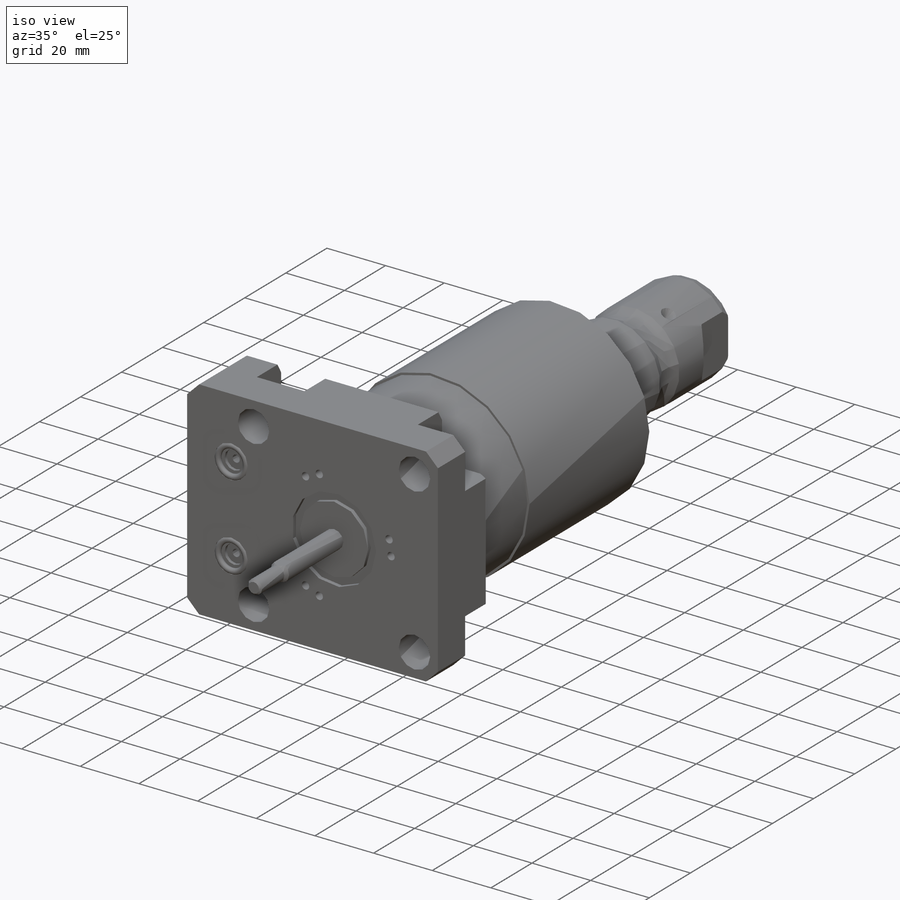
[diagram: iso view]
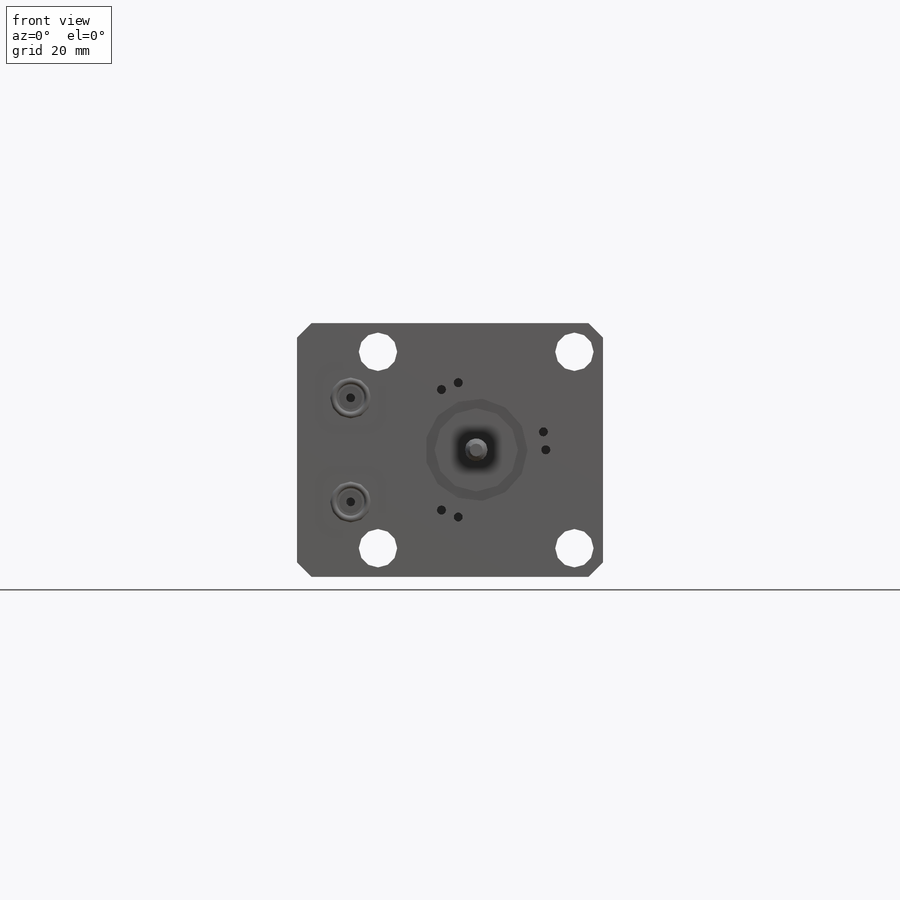
[diagram: front view]
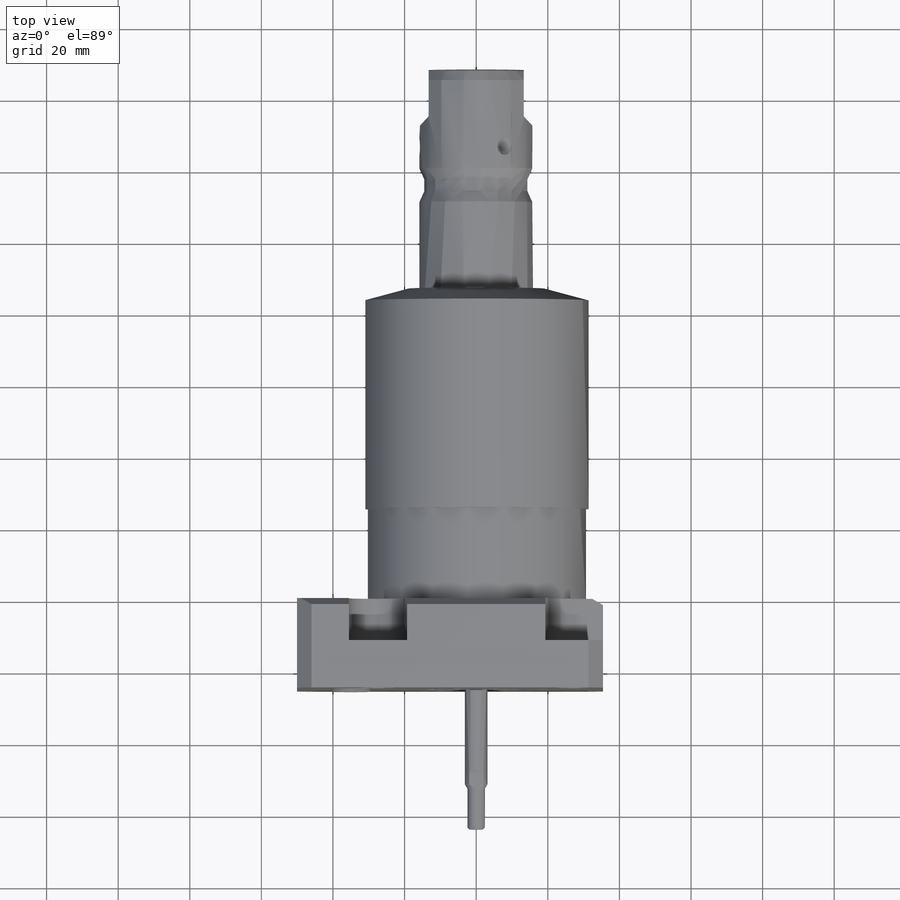
[diagram: top view]
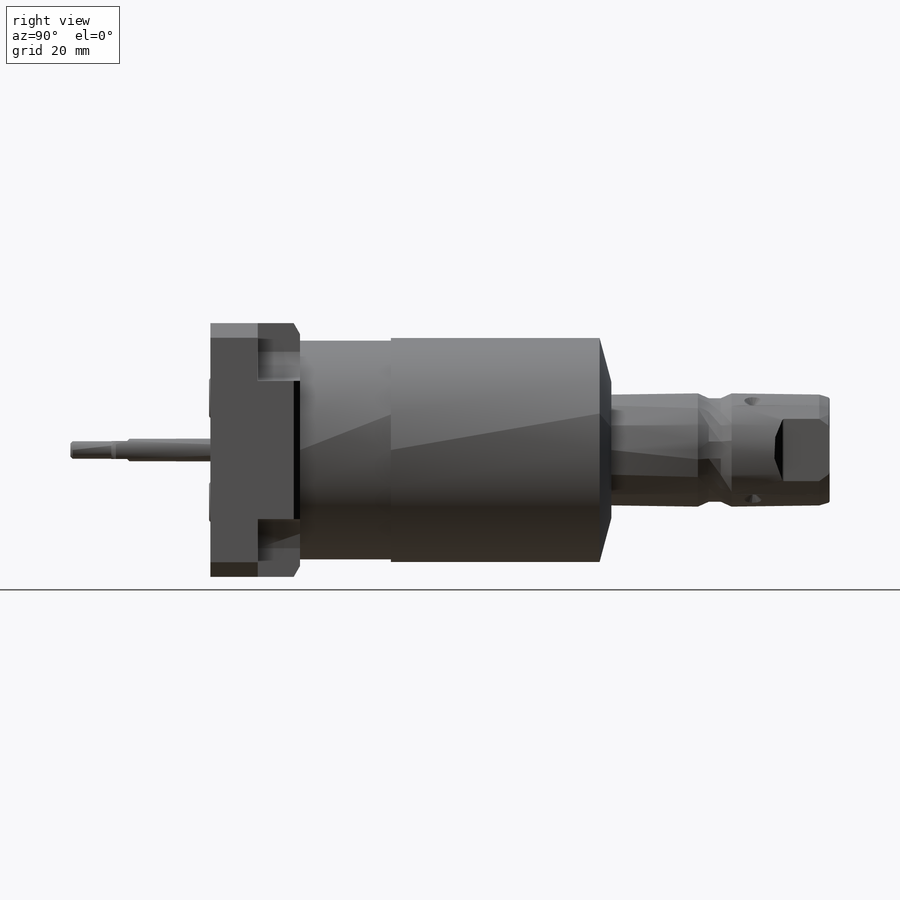
[diagram: right view]
SOLIDWORKS PART (.sldprt)
format: sldprt  version: not decoded by parser v0  size: 664,576 bytes
history: native  units: mm
features: sketch x19, cut_extrude x7, revolve x4, cut_revolve x3, hole x2, plane x2, mirror x2, chamfer x2, material x1, extrude x1, pattern_circular x1, fillet x1 (+13 scaffold rows collapsed)
feature tree (58):
  scaffold x13  (default folders/planes/origin — collapsed)
  material  "Alloy Steel"
  sketch  "Sketch1"  dims[D1=85.496mm D2=70.866mm D3=35.433mm D4=35.433mm]
  extrude  "Extrude1"  Depth=25.019mm
  hole  "Hole1"  Diameter=10.719mm Depth=25.019mm
  sketch  "Sketch22"  dims[D1=27.432mm D2=27.432mm]
  sketch  "Sketch21"  dims[Diameter=10.719mm Depth=25.019mm]
  sketch  "Sketch3"  dims[D1=8.128mm]
  cut_extrude  "Cut-Extrude2"  Depth=11.786mm
  plane  "Plane16"  Offset=12.497mm
  sketch  "Sketch23"  dims[c1.D1=21.4884mm c1.D2=0.254mm c1.D3=~4.954284mm c2.D3=45.0deg c2.D4=13.3096mm c2.D5=11.8872mm c2.D6=14.1732mm c2.D7=13.0048mm]
  cut_revolve  "Cut-Revolve5"  Angle=360deg
  mirror  "Mirror1"
  sketch  "Sketch6"  dims[D4=11.4046mm D1=14.529mm D2=29.058mm D3=35.077mm]
  cut_extrude  "Cut-Extrude3"  Depth=1.4478mm
  sketch  "Sketch7"  dims[D1=6.5024mm]
  cut_extrude  "Cut-Extrude4"  Depth=1.016mm
  sketch  "Sketch8"  dims[D1=2.4892mm]
  cut_extrude  "Cut-Extrude5"  Depth=11.9888mm
  plane  "Plane17"  Offset=14.5288mm
  sketch  "Sketch9"  dims[D1=1.8542mm D2=9.5504mm]
  revolve  "Revolve1"  Angle=360deg
  mirror  "Mirror2"
  chamfer  "Chamfer1"  Distance=4.064mm Angle=45deg
  chamfer  "Chamfer2"  Distance=3.0226mm Angle=30deg
  sketch  "Sketch24"  dims[c1.D1=61.316mm c1.D2=25.4mm c1.D3=62.789mm c1.D4=38.1mm c1.D5=19.05mm c2.D5=15.0deg c2.D6=86.995mm]
  revolve  "Revolve4"  Angle=360deg
  sketch  "Sketch17"  dims[c1.D2=1.016mm c1.D4=7.925mm c1.D5=7.9248mm c1.D1=172.974mm c1.D3=31.75mm c2.D5=28.651mm c2.D6=32.106mm c2.D2=~1.436841mm c3.D2=20.0deg c3.D7=~2.921006mm]
  revolve  "Revolve3"  Angle=360deg
  sketch  "Sketch30"  dims[c1.D1=~4.25055mm c2.D1=45.0deg c2.D2=4.826mm c2.D3=10.668mm]
  cut_revolve  "Cut-Revolve6"  Angle=360deg
  pattern_circular  "CirPattern1"  Count=3 Angle=360deg
  fillet  "Fillet2"  Radius=0.635mm
  sketch  "Sketch32"  dims[c1.D1=~0.762002mm c1.D2=12.7mm c1.D3=~5.770317mm c2.D3=45.0deg c2.D4=26.568mm]
  cut_extrude  "Cut-Extrude8"  [1 undecoded]
  hole  "Hole2"  Diameter=13.8684mm Depth=25.4mm
  sketch  "Sketch34"
  sketch  "Sketch33"  dims[c1.D1=~97.659253deg c1.D2=~82.982399deg c1.Diameter=13.8684mm c2.D2=100.0mm c2.D3=~82.982399deg c2.D4=90.0deg c3.D3=~97.716715deg c3.Depth=25.4mm c3.Drill Angle=118.0deg]
  sketch  "Sketch35"  dims[D1=45.0deg D2=~4.87681mm D3=30.0deg D4=~6.350013mm D5=~11.430023mm D6=~212.090424mm D7=~0.635001mm]
  revolve  "Revolve5"  Angle=360deg
  sketch  "Sketch36"  dims[D1=~5.00381mm D2=45.0deg D3=~15.875032mm]
  cut_extrude  "Cut-Extrude9"  Depth=7.620015mm
  sketch  "Sketch37"  dims[D1=~1.320803mm D2=~23.291847mm D3=~28.702057mm]
  cut_revolve  "Cut-Revolve7"  Angle=360deg
  sketch  "Sketch38"  dims[D3=~38.862078mm D4=~2.540005mm D5=~2.540005mm D6=~2.540005mm D1=15.0deg D2=60.0deg]
  cut_extrude  "Cut-Extrude10"  Depth=7.620015mm
decode coverage: 38 of 42 modeling features carry decoded parameters
note: ~ marks probable driven/reference dimensions
note: 1 parameter value undecoded
note: suppression state not decoded; provenance and decode notes live in map.json
